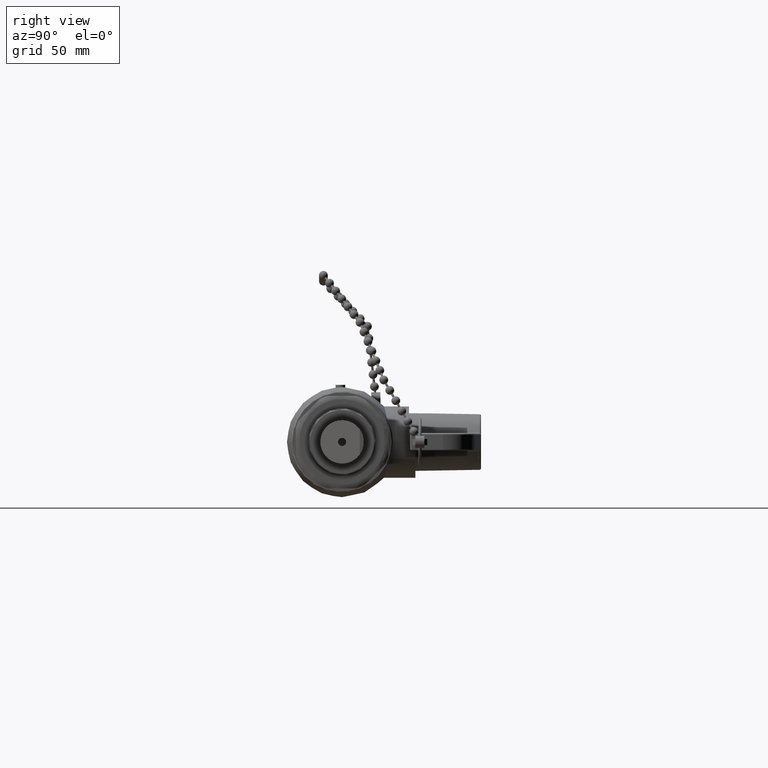
[diagram: clean part render]
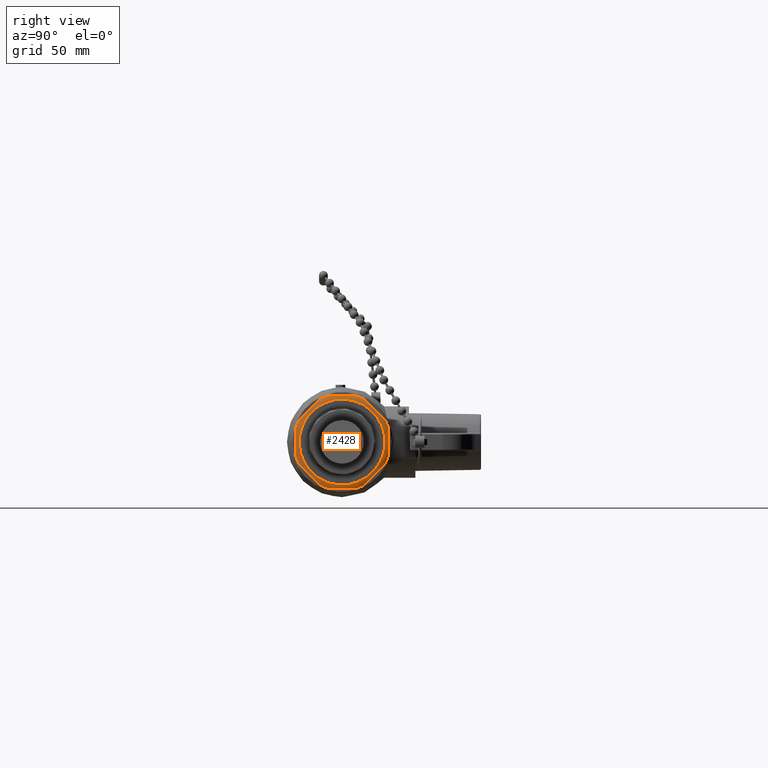
[diagram: same view with one face highlighted and labeled with its STEP entity id]
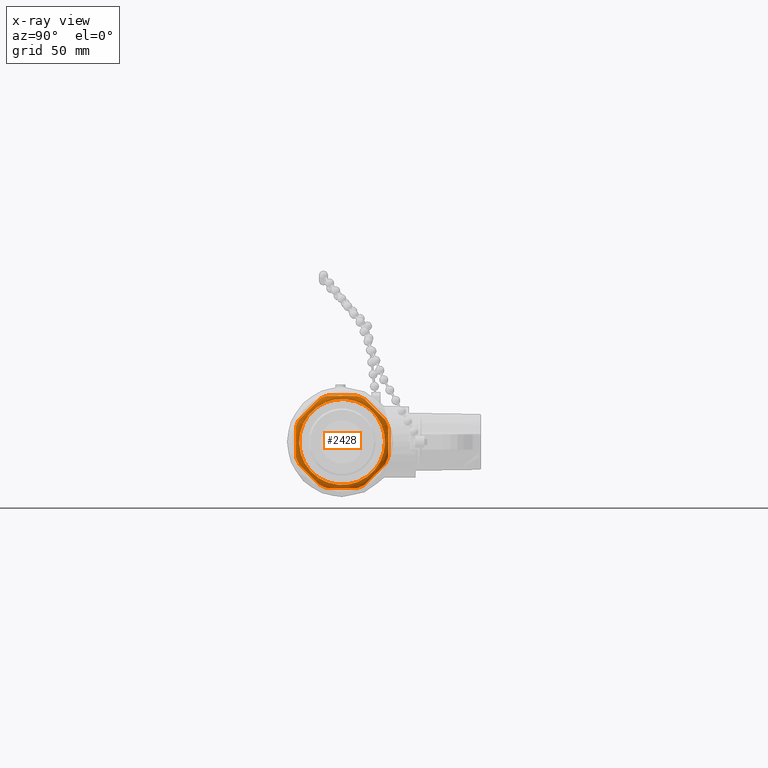
[diagram: x-ray of the same camera — body ghosted, the highlighted face saturated]
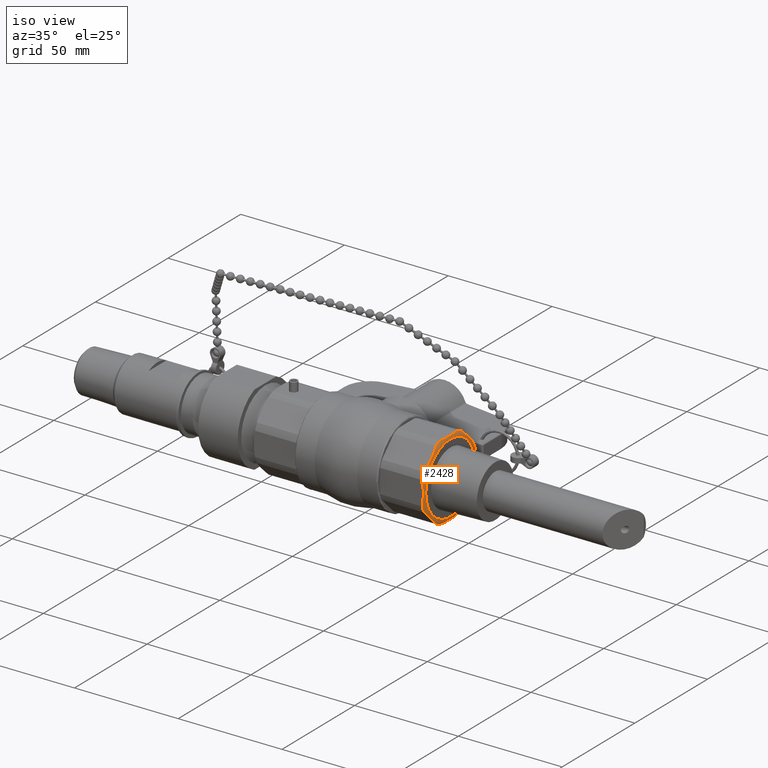
[diagram: same view with one face highlighted and labeled with its STEP entity id]
A machine part, right view. The second image highlights one B-rep face of the part: STEP entity #2428.
The next image is the same camera in x-ray: the body ghosted, the highlighted face saturated — about 0% of this face is hidden behind the body in this view.
A second angle (iso view) of the same face is appended — the face is thin or edge-on in the first view.
In plain terms, the highlighted toroidal blend (fillet) surface has major radius 16.9545 mm and minor (blend) radius 3.175 mm.
Its self-contained STEP definition (entity closure, byte-faithful):
#2195=CARTESIAN_POINT('',(1.618000000000000,0.667500000000000,1.981479E-016));
#2196=VERTEX_POINT('',#2195);
#2197=CARTESIAN_POINT('',(1.618000000000000,0.0,1.981479E-016));
#2198=DIRECTION('',(-1.0,0.0,0.0));
#2199=DIRECTION('',(0.0,-1.0,0.0));
#2200=AXIS2_PLACEMENT_3D('',#2197,#2198,#2199);
#2201=CIRCLE('',#2200,0.667500000000000);
#2202=EDGE_CURVE('',#2196,#2196,#2201,.T.);
#2218=CARTESIAN_POINT('',(1.493000000000000,0.0,1.828398E-016));
#2219=DIRECTION('',(-1.0,0.0,-1.224647E-016));
#2220=DIRECTION('',(0.0,0.0,1.0));
#2221=AXIS2_PLACEMENT_3D('',#2218,#2219,#2220);
#2222=TOROIDAL_SURFACE('',#2221,0.667500000000000,0.125000000000000);
#2223=ORIENTED_EDGE('',*,*,#2202,.T.);
#2224=EDGE_LOOP('',(#2223));
#2225=FACE_OUTER_BOUND('',#2224,.T.);
#2226=CARTESIAN_POINT('',(1.585112702707064,-0.666562415825159,0.348135815177537));
#2227=VERTEX_POINT('',#2226);
#2228=CARTESIAN_POINT('',(1.585112702707064,-0.717500000000000,0.225161608628114));
#2229=VERTEX_POINT('',#2228);
#2230=CARTESIAN_POINT('',(1.585112702707064,0.0,1.941203E-016));
#2231=DIRECTION('',(1.0,0.0,0.0));
#2232=DIRECTION('',(0.0,0.0,-1.0));
#2233=AXIS2_PLACEMENT_3D('',#2230,#2231,#2232);
#2234=CIRCLE('',#2233,0.752000000000000);
#2235=EDGE_CURVE('',#2227,#2229,#2234,.T.);
#2236=ORIENTED_EDGE('',*,*,#2235,.T.);
#2237=CARTESIAN_POINT('',(1.585112702707064,-0.717500000000000,-0.225161608628114));
#2238=VERTEX_POINT('',#2237);
#2239=CARTESIAN_POINT('',(1.585112702707064,-0.717500000000000,0.225161608628114));
#2240=CARTESIAN_POINT('',(1.593438193017208,-0.717500000000000,0.194850896924236));
#2241=CARTESIAN_POINT('',(1.598495457448399,-0.717500000000000,0.162194368817727));
#2242=CARTESIAN_POINT('',(1.606212016415179,-0.717500000000000,0.085193501644084));
#2243=CARTESIAN_POINT('',(1.607564392373896,-0.717500000000000,0.040601387131935));
#2244=CARTESIAN_POINT('',(1.607564392373896,-0.717500000000000,1.968699E-016));
#2245=CARTESIAN_POINT('',(1.607564392373896,-0.717500000000000,-0.040601387131935));
#2246=CARTESIAN_POINT('',(1.606212016415179,-0.717500000000000,-0.085193501644084));
#2247=CARTESIAN_POINT('',(1.598495457448399,-0.717500000000000,-0.162194368817727));
#2248=CARTESIAN_POINT('',(1.593438193017208,-0.717500000000000,-0.194850896924235));
#2249=CARTESIAN_POINT('',(1.585112702707064,-0.717500000000000,-0.225161608628114));
#2250=B_SPLINE_CURVE_WITH_KNOTS('',3,(#2239,#2240,#2241,#2242,#2243,#2244,#2245,#2246,#2247,#2248,#2249),.UNSPECIFIED.,.F.,.U.,(4,2,3,2,4),(-0.541598222803650,-0.309382569945343,0.0,0.309382569945343,0.541598222803650),.UNSPECIFIED.);
#2251=EDGE_CURVE('',#2229,#2238,#2250,.T.);
#2252=ORIENTED_EDGE('',*,*,#2251,.T.);
#2253=CARTESIAN_POINT('',(1.585112702707064,-0.666562415825159,-0.348135815177537));
#2254=VERTEX_POINT('',#2253);
#2255=CARTESIAN_POINT('',(1.585112702707064,0.0,1.941203E-016));
#2256=DIRECTION('',(1.0,0.0,0.0));
#2257=DIRECTION('',(0.0,0.0,-1.0));
#2258=AXIS2_PLACEMENT_3D('',#2255,#2256,#2257);
#2259=CIRCLE('',#2258,0.752000000000000);
#2260=EDGE_CURVE('',#2238,#2254,#2259,.T.);
#2261=ORIENTED_EDGE('',*,*,#2260,.T.);
#2262=CARTESIAN_POINT('',(1.585112702707064,-0.348135815177537,-0.666562415825159));
#2263=VERTEX_POINT('',#2262);
#2264=CARTESIAN_POINT('',(1.585112702707064,-0.666562415825159,-0.348135815177537));
#2265=CARTESIAN_POINT('',(1.593438193017208,-0.645129506036756,-0.369568724965940));
#2266=CARTESIAN_POINT('',(1.598495457448399,-0.622037853562635,-0.392660377440061));
#2267=CARTESIAN_POINT('',(1.606212016415179,-0.567590018226907,-0.447108212775789));
#2268=CARTESIAN_POINT('',(1.607564392373896,-0.536058631667919,-0.478639599334777));
#2269=CARTESIAN_POINT('',(1.607564392373896,-0.507349115501348,-0.507349115501348));
#2270=CARTESIAN_POINT('',(1.607564392373896,-0.478639599334777,-0.536058631667919));
#2271=CARTESIAN_POINT('',(1.606212016415179,-0.447108212775789,-0.567590018226907));
#2272=CARTESIAN_POINT('',(1.598495457448399,-0.392660377440061,-0.622037853562635));
#2273=CARTESIAN_POINT('',(1.593438193017208,-0.369568724965940,-0.645129506036756));
#2274=CARTESIAN_POINT('',(1.585112702707064,-0.348135815177537,-0.666562415825159));
#2275=B_SPLINE_CURVE_WITH_KNOTS('',3,(#2264,#2265,#2266,#2267,#2268,#2269,#2270,#2271,#2272,#2273,#2274),.UNSPECIFIED.,.F.,.U.,(4,2,3,2,4),(-0.541598222803650,-0.309382569945344,0.0,0.309382569945344,0.541598222803650),.UNSPECIFIED.);
#2276=EDGE_CURVE('',#2254,#2263,#2275,.T.);
#2277=ORIENTED_EDGE('',*,*,#2276,.T.);
#2278=CARTESIAN_POINT('',(1.585112702707064,-0.225161608628114,-0.717500000000000));
#2279=VERTEX_POINT('',#2278);
#2280=CARTESIAN_POINT('',(1.585112702707064,0.0,1.941203E-016));
#2281=DIRECTION('',(1.0,0.0,0.0));
#2282=DIRECTION('',(0.0,0.0,-1.0));
#2283=AXIS2_PLACEMENT_3D('',#2280,#2281,#2282);
#2284=CIRCLE('',#2283,0.752000000000000);
#2285=EDGE_CURVE('',#2263,#2279,#2284,.T.);
#2286=ORIENTED_EDGE('',*,*,#2285,.T.);
#2287=CARTESIAN_POINT('',(1.585112702707064,0.225161608628114,-0.717500000000000));
#2288=VERTEX_POINT('',#2287);
#2289=CARTESIAN_POINT('',(1.585112702707064,-0.225161608628114,-0.717500000000000));
#2290=CARTESIAN_POINT('',(1.593438193017208,-0.194850896924235,-0.717500000000000));
#2291=CARTESIAN_POINT('',(1.598495457448399,-0.162194368817727,-0.717500000000000));
#2292=CARTESIAN_POINT('',(1.606212016415179,-0.085193501644084,-0.717500000000000));
#2293=CARTESIAN_POINT('',(1.607564392373896,-0.040601387131935,-0.717500000000000));
#2294=CARTESIAN_POINT('',(1.607564392373896,0.0,-0.717500000000000));
#2295=CARTESIAN_POINT('',(1.607564392373896,0.040601387131935,-0.717500000000000));
#2296=CARTESIAN_POINT('',(1.606212016415179,0.085193501644084,-0.717500000000000));
#2297=CARTESIAN_POINT('',(1.598495457448399,0.162194368817727,-0.717500000000000));
#2298=CARTESIAN_POINT('',(1.593438193017208,0.194850896924236,-0.717500000000000));
#2299=CARTESIAN_POINT('',(1.585112702707064,0.225161608628114,-0.717500000000000));
#2300=B_SPLINE_CURVE_WITH_KNOTS('',3,(#2289,#2290,#2291,#2292,#2293,#2294,#2295,#2296,#2297,#2298,#2299),.UNSPECIFIED.,.F.,.U.,(4,2,3,2,4),(-0.541598222803650,-0.309382569945343,0.0,0.309382569945343,0.541598222803650),.UNSPECIFIED.);
#2301=EDGE_CURVE('',#2279,#2288,#2300,.T.);
#2302=ORIENTED_EDGE('',*,*,#2301,.T.);
#2303=CARTESIAN_POINT('',(1.585112702707064,0.348135815177537,-0.666562415825159));
#2304=VERTEX_POINT('',#2303);
#2305=CARTESIAN_POINT('',(1.585112702707064,0.0,1.941203E-016));
#2306=DIRECTION('',(1.0,0.0,0.0));
#2307=DIRECTION('',(0.0,0.0,-1.0));
#2308=AXIS2_PLACEMENT_3D('',#2305,#2306,#2307);
#2309=CIRCLE('',#2308,0.752000000000000);
#2310=EDGE_CURVE('',#2288,#2304,#2309,.T.);
#2311=ORIENTED_EDGE('',*,*,#2310,.T.);
#2312=CARTESIAN_POINT('',(1.585112702707064,0.666562415825159,-0.348135815177537));
#2313=VERTEX_POINT('',#2312);
#2314=CARTESIAN_POINT('',(1.585112702707064,0.348135815177537,-0.666562415825158));
#2315=CARTESIAN_POINT('',(1.593438193017208,0.369568724965940,-0.645129506036756));
#2316=CARTESIAN_POINT('',(1.598495457448399,0.392660377440061,-0.622037853562635));
#2317=CARTESIAN_POINT('',(1.606212016415179,0.447108212775789,-0.567590018226907));
#2318=CARTESIAN_POINT('',(1.607564392373896,0.478639599334777,-0.536058631667919));
#2319=CARTESIAN_POINT('',(1.607564392373896,0.507349115501348,-0.507349115501348));
#2320=CARTESIAN_POINT('',(1.607564392373896,0.536058631667919,-0.478639599334777));
#2321=CARTESIAN_POINT('',(1.606212016415179,0.567590018226907,-0.447108212775789));
#2322=CARTESIAN_POINT('',(1.598495457448399,0.622037853562635,-0.392660377440061));
#2323=CARTESIAN_POINT('',(1.593438193017208,0.645129506036756,-0.369568724965940));
#2324=CARTESIAN_POINT('',(1.585112702707064,0.666562415825159,-0.348135815177537));
#2325=B_SPLINE_CURVE_WITH_KNOTS('',3,(#2314,#2315,#2316,#2317,#2318,#2319,#2320,#2321,#2322,#2323,#2324),.UNSPECIFIED.,.F.,.U.,(4,2,3,2,4),(-0.541598222803650,-0.309382569945344,0.0,0.309382569945344,0.541598222803650),.UNSPECIFIED.);
#2326=EDGE_CURVE('',#2304,#2313,#2325,.T.);
#2327=ORIENTED_EDGE('',*,*,#2326,.T.);
#2328=CARTESIAN_POINT('',(1.585112702707064,0.717500000000000,-0.225161608628114));
#2329=VERTEX_POINT('',#2328);
#2330=CARTESIAN_POINT('',(1.585112702707064,0.0,1.941203E-016));
#2331=DIRECTION('',(1.0,0.0,0.0));
#2332=DIRECTION('',(0.0,0.0,-1.0));
#2333=AXIS2_PLACEMENT_3D('',#2330,#2331,#2332);
#2334=CIRCLE('',#2333,0.752000000000000);
#2335=EDGE_CURVE('',#2313,#2329,#2334,.T.);
#2336=ORIENTED_EDGE('',*,*,#2335,.T.);
#2337=CARTESIAN_POINT('',(1.585112702707064,0.717500000000000,0.225161608628114));
#2338=VERTEX_POINT('',#2337);
#2339=CARTESIAN_POINT('',(1.585112702707064,0.717500000000000,-0.225161608628114));
#2340=CARTESIAN_POINT('',(1.593438193017208,0.717500000000000,-0.194850896924235));
#2341=CARTESIAN_POINT('',(1.598495457448399,0.717500000000000,-0.162194368817727));
#2342=CARTESIAN_POINT('',(1.606212016415179,0.717500000000000,-0.085193501644084));
#2343=CARTESIAN_POINT('',(1.607564392373896,0.717500000000000,-0.040601387131935));
#2344=CARTESIAN_POINT('',(1.607564392373896,0.717500000000000,1.968699E-016));
#2345=CARTESIAN_POINT('',(1.607564392373896,0.717500000000000,0.040601387131935));
#2346=CARTESIAN_POINT('',(1.606212016415179,0.717500000000000,0.085193501644084));
#2347=CARTESIAN_POINT('',(1.598495457448399,0.717500000000000,0.162194368817727));
#2348=CARTESIAN_POINT('',(1.593438193017208,0.717500000000000,0.194850896924236));
#2349=CARTESIAN_POINT('',(1.585112702707064,0.717500000000000,0.225161608628114));
#2350=B_SPLINE_CURVE_WITH_KNOTS('',3,(#2339,#2340,#2341,#2342,#2343,#2344,#2345,#2346,#2347,#2348,#2349),.UNSPECIFIED.,.F.,.U.,(4,2,3,2,4),(-0.541598222803650,-0.309382569945343,0.0,0.309382569945343,0.541598222803650),.UNSPECIFIED.);
#2351=EDGE_CURVE('',#2329,#2338,#2350,.T.);
#2352=ORIENTED_EDGE('',*,*,#2351,.T.);
#2353=CARTESIAN_POINT('',(1.585112702707064,0.666562415825159,0.348135815177537));
#2354=VERTEX_POINT('',#2353);
#2355=CARTESIAN_POINT('',(1.585112702707064,0.0,1.941203E-016));
#2356=DIRECTION('',(1.0,0.0,0.0));
#2357=DIRECTION('',(0.0,0.0,-1.0));
#2358=AXIS2_PLACEMENT_3D('',#2355,#2356,#2357);
#2359=CIRCLE('',#2358,0.752000000000000);
#2360=EDGE_CURVE('',#2338,#2354,#2359,.T.);
#2361=ORIENTED_EDGE('',*,*,#2360,.T.);
#2362=CARTESIAN_POINT('',(1.585112702707064,0.348135815177537,0.666562415825159));
#2363=VERTEX_POINT('',#2362);
#2364=CARTESIAN_POINT('',(1.585112702707064,0.666562415825159,0.348135815177537));
#2365=CARTESIAN_POINT('',(1.593438193017208,0.645129506036756,0.369568724965940));
#2366=CARTESIAN_POINT('',(1.598495457448399,0.622037853562635,0.392660377440061));
#2367=CARTESIAN_POINT('',(1.606212016415179,0.567590018226907,0.447108212775789));
#2368=CARTESIAN_POINT('',(1.607564392373896,0.536058631667919,0.478639599334777));
#2369=CARTESIAN_POINT('',(1.607564392373896,0.507349115501348,0.507349115501348));
#2370=CARTESIAN_POINT('',(1.607564392373896,0.478639599334777,0.536058631667920));
#2371=CARTESIAN_POINT('',(1.606212016415179,0.447108212775789,0.567590018226907));
#2372=CARTESIAN_POINT('',(1.598495457448399,0.392660377440061,0.622037853562635));
#2373=CARTESIAN_POINT('',(1.593438193017208,0.369568724965940,0.645129506036756));
#2374=CARTESIAN_POINT('',(1.585112702707064,0.348135815177537,0.666562415825159));
#2375=B_SPLINE_CURVE_WITH_KNOTS('',3,(#2364,#2365,#2366,#2367,#2368,#2369,#2370,#2371,#2372,#2373,#2374),.UNSPECIFIED.,.F.,.U.,(4,2,3,2,4),(-0.541598222803650,-0.309382569945344,0.0,0.309382569945344,0.541598222803650),.UNSPECIFIED.);
#2376=EDGE_CURVE('',#2354,#2363,#2375,.T.);
#2377=ORIENTED_EDGE('',*,*,#2376,.T.);
#2378=CARTESIAN_POINT('',(1.585112702707064,0.225161608628114,0.717500000000000));
#2379=VERTEX_POINT('',#2378);
#2380=CARTESIAN_POINT('',(1.585112702707064,0.0,1.941203E-016));
#2381=DIRECTION('',(1.0,0.0,0.0));
#2382=DIRECTION('',(0.0,0.0,-1.0));
#2383=AXIS2_PLACEMENT_3D('',#2380,#2381,#2382);
#2384=CIRCLE('',#2383,0.752000000000000);
#2385=EDGE_CURVE('',#2363,#2379,#2384,.T.);
#2386=ORIENTED_EDGE('',*,*,#2385,.T.);
#2387=CARTESIAN_POINT('',(1.585112702707064,-0.225161608628114,0.717500000000000));
#2388=VERTEX_POINT('',#2387);
#2389=CARTESIAN_POINT('',(1.585112702707064,0.225161608628114,0.717500000000000));
#2390=CARTESIAN_POINT('',(1.593438193017208,0.194850896924235,0.717500000000000));
#2391=CARTESIAN_POINT('',(1.598495457448399,0.162194368817727,0.717500000000000));
#2392=CARTESIAN_POINT('',(1.606212016415179,0.085193501644084,0.717500000000000));
#2393=CARTESIAN_POINT('',(1.607564392373896,0.040601387131935,0.717500000000000));
#2394=CARTESIAN_POINT('',(1.607564392373896,0.0,0.717500000000000));
#2395=CARTESIAN_POINT('',(1.607564392373896,-0.040601387131935,0.717500000000000));
#2396=CARTESIAN_POINT('',(1.606212016415179,-0.085193501644084,0.717500000000000));
#2397=CARTESIAN_POINT('',(1.598495457448399,-0.162194368817727,0.717500000000000));
#2398=CARTESIAN_POINT('',(1.593438193017208,-0.194850896924236,0.717500000000000));
#2399=CARTESIAN_POINT('',(1.585112702707064,-0.225161608628114,0.717500000000000));
#2400=B_SPLINE_CURVE_WITH_KNOTS('',3,(#2389,#2390,#2391,#2392,#2393,#2394,#2395,#2396,#2397,#2398,#2399),.UNSPECIFIED.,.F.,.U.,(4,2,3,2,4),(-0.541598222803650,-0.309382569945343,0.0,0.309382569945343,0.541598222803650),.UNSPECIFIED.);
#2401=EDGE_CURVE('',#2379,#2388,#2400,.T.);
#2402=ORIENTED_EDGE('',*,*,#2401,.T.);
#2403=CARTESIAN_POINT('',(1.585112702707064,-0.348135815177537,0.666562415825159));
#2404=VERTEX_POINT('',#2403);
#2405=CARTESIAN_POINT('',(1.585112702707064,0.0,1.941203E-016));
#2406=DIRECTION('',(1.0,0.0,0.0));
#2407=DIRECTION('',(0.0,0.0,-1.0));
#2408=AXIS2_PLACEMENT_3D('',#2405,#2406,#2407);
#2409=CIRCLE('',#2408,0.752000000000000);
#2410=EDGE_CURVE('',#2388,#2404,#2409,.T.);
#2411=ORIENTED_EDGE('',*,*,#2410,.T.);
#2412=CARTESIAN_POINT('',(1.585112702707064,-0.348135815177537,0.666562415825159));
#2413=CARTESIAN_POINT('',(1.593438193017208,-0.369568724965940,0.645129506036756));
#2414=CARTESIAN_POINT('',(1.598495457448399,-0.392660377440061,0.622037853562635));
#2415=CARTESIAN_POINT('',(1.606212016415179,-0.447108212775789,0.567590018226907));
#2416=CARTESIAN_POINT('',(1.607564392373896,-0.478639599334777,0.536058631667920));
#2417=CARTESIAN_POINT('',(1.607564392373896,-0.507349115501348,0.507349115501348));
#2418=CARTESIAN_POINT('',(1.607564392373896,-0.536058631667919,0.478639599334777));
#2419=CARTESIAN_POINT('',(1.606212016415179,-0.567590018226907,0.447108212775789));
#2420=CARTESIAN_POINT('',(1.598495457448399,-0.622037853562635,0.392660377440061));
#2421=CARTESIAN_POINT('',(1.593438193017208,-0.645129506036756,0.369568724965940));
#2422=CARTESIAN_POINT('',(1.585112702707064,-0.666562415825159,0.348135815177537));
#2423=B_SPLINE_CURVE_WITH_KNOTS('',3,(#2412,#2413,#2414,#2415,#2416,#2417,#2418,#2419,#2420,#2421,#2422),.UNSPECIFIED.,.F.,.U.,(4,2,3,2,4),(-0.541598222803650,-0.309382569945344,0.0,0.309382569945344,0.541598222803650),.UNSPECIFIED.);
#2424=EDGE_CURVE('',#2404,#2227,#2423,.T.);
#2425=ORIENTED_EDGE('',*,*,#2424,.T.);
#2426=EDGE_LOOP('',(#2236,#2252,#2261,#2277,#2286,#2302,#2311,#2327,#2336,#2352,#2361,#2377,#2386,#2402,#2411,#2425));
#2427=FACE_BOUND('',#2426,.T.);
#2428=ADVANCED_FACE('',(#2225,#2427),#2222,.T.);